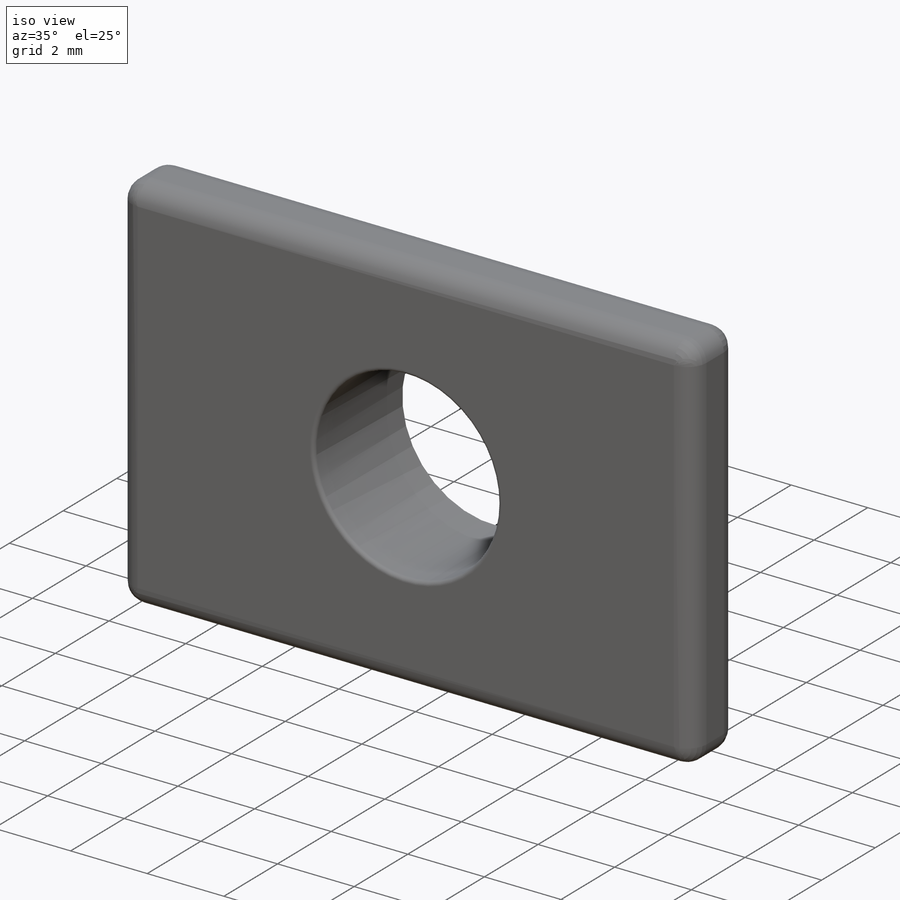
[diagram: iso view]
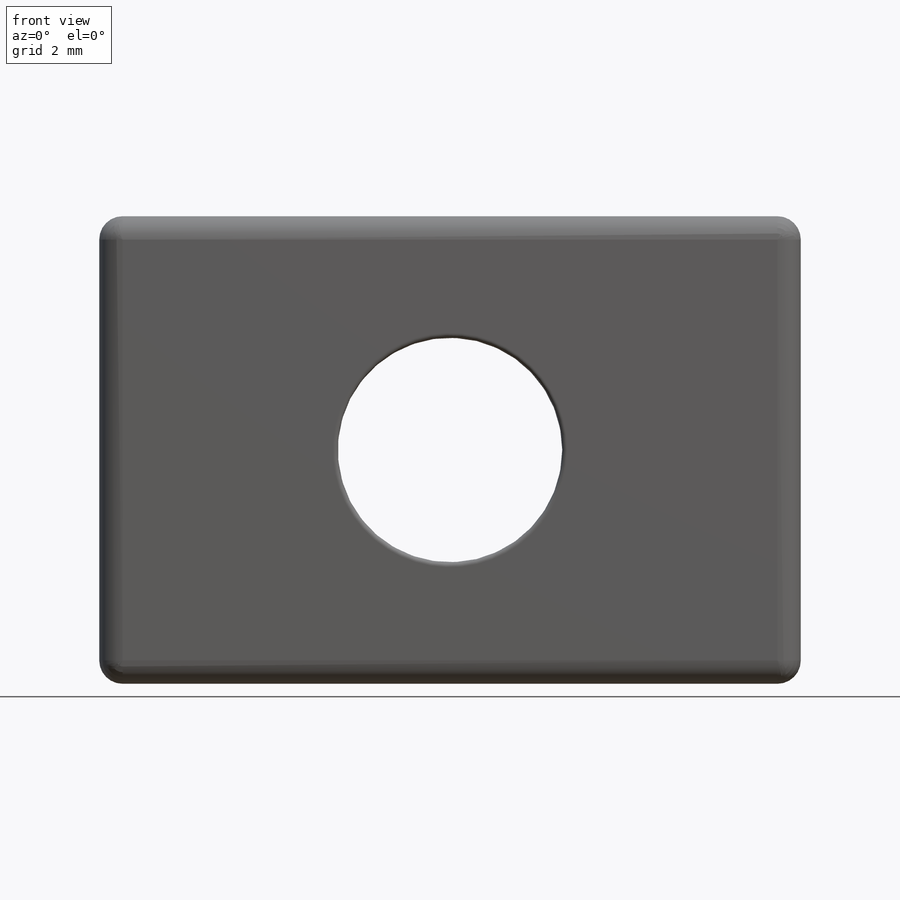
[diagram: front view]
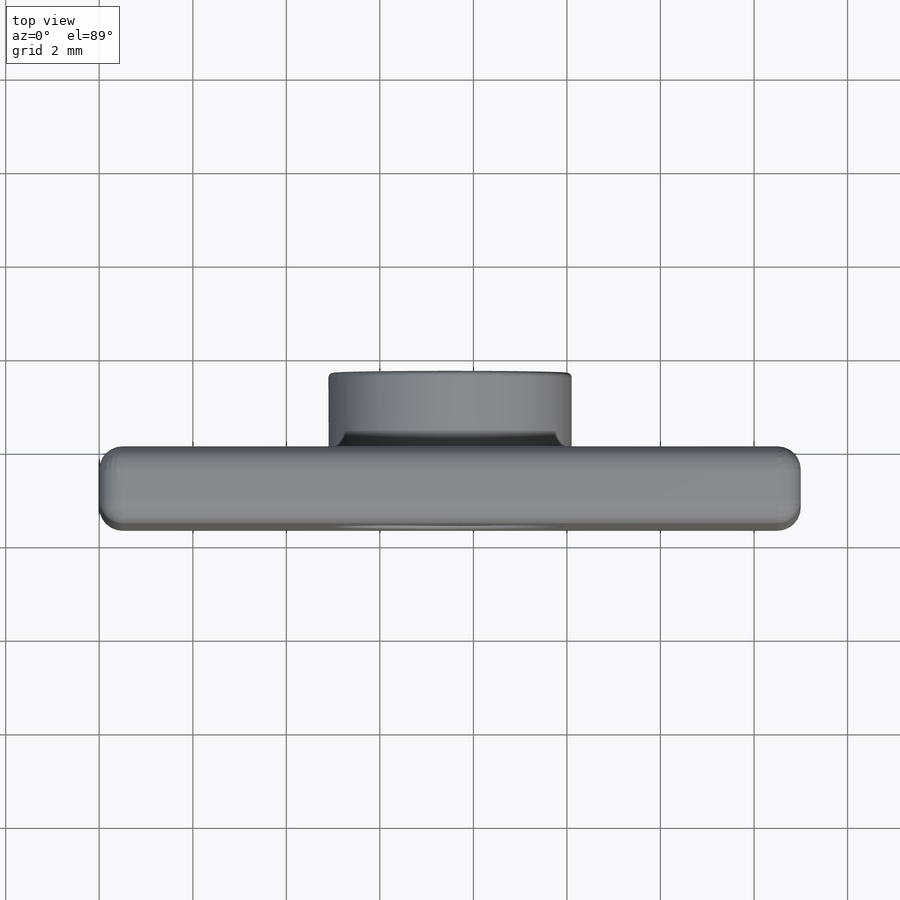
[diagram: top view]
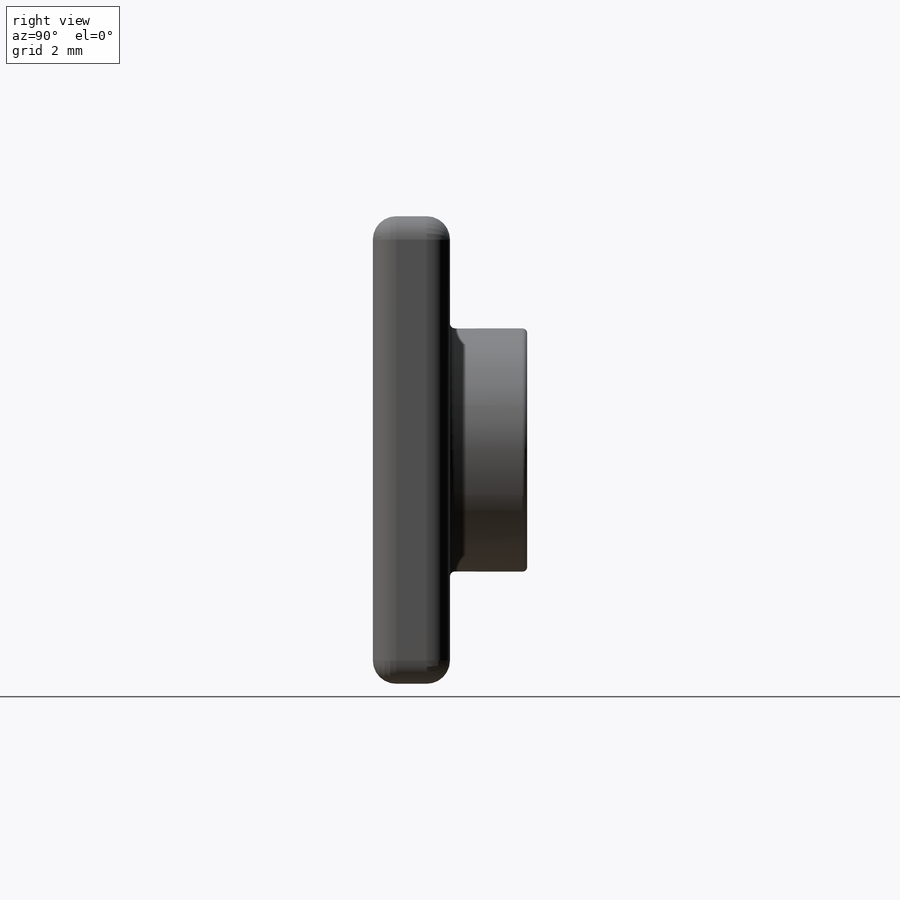
[diagram: right view]
SOLIDWORKS PART (.sldprt)
format: sldprt  version: not decoded by parser v0  size: 305,664 bytes
history: native  units: mm
features: sketch x3, fillet x3, extrude x2, material x1, cut_extrude x1 (+12 scaffold rows collapsed)
feature tree (22):
  scaffold x12  (default folders/planes/origin — collapsed)
  material  "Material <not specified>"
  sketch  "Sketch1"  dims[D3=4.8mm D1=15.0mm D2=9.998mm]
  extrude  "Boss-Extrude1"  Depth=1.65mm
  sketch  "Sketch2"  dims[D1=0.2mm]
  extrude  "Boss-Extrude2"  Depth=1.65mm
  sketch  "Sketch3"
  cut_extrude  "Cut-Extrude1"  [1 undecoded]
  fillet  "Fillet1"  Radius=0.1mm
  fillet  "Fillet3"  Radius=0.5mm
  fillet  "Fillet4"  Radius=0.5mm
decode coverage: 7 of 9 modeling features carry decoded parameters
note: 1 parameter value undecoded
note: suppression state not decoded; provenance and decode notes live in map.json
